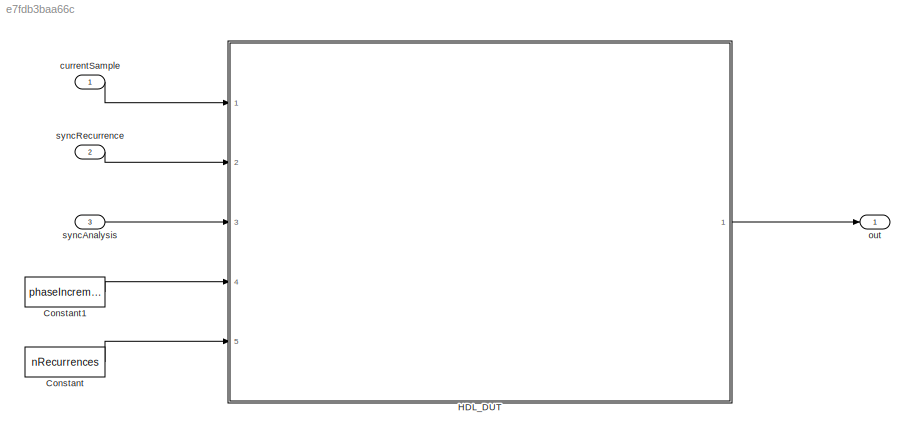
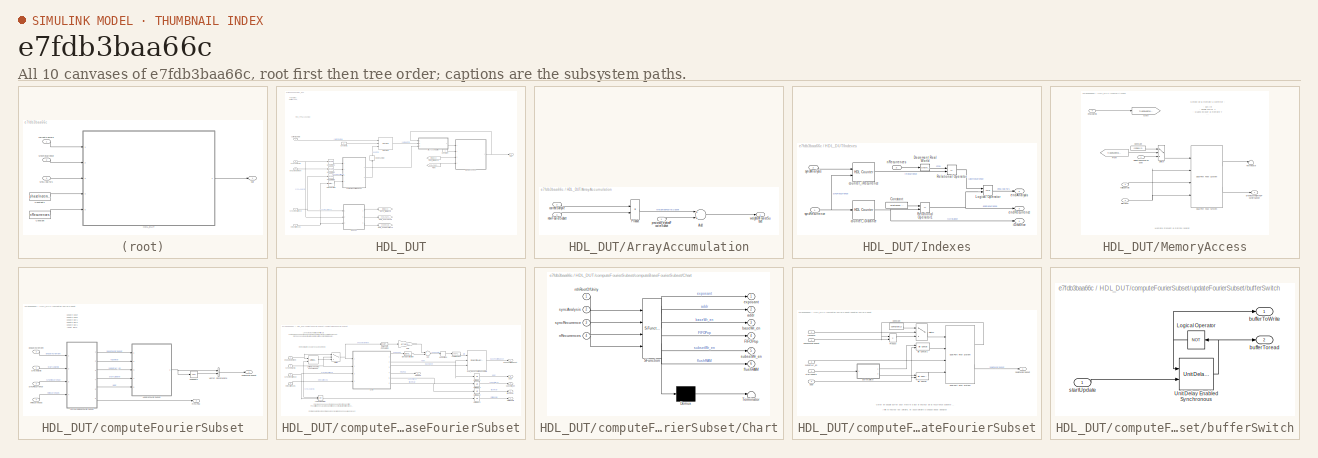
[diagram: thumbnail index - all 10 canvases of the model, root first then tree order]
MODEL slx_e7fdb3baa66c
KIND model
CONFIG AbsTol = auto
CONFIG EnableMultiTasking = off
CONFIG FixedStep = auto
CONFIG MaxStep = auto
CONFIG MinStep = auto
CONFIG PreLoadFcn = DFT_init
CONFIG RelTol = 1e-3
CONFIG SampleTimeConstraint = Unconstrained
CONFIG Solver = FixedStepDiscrete
CONFIG SolverName = FixedStepDiscrete
CONFIG StartTime = 0.0
CONFIG StopTime = simulationTime
BLOCK [Constant] Constant
  OutDataTypeStr = fixdt(0,10,0)
  SampleTime = sampleTime
  Value = nRecurrences
BLOCK [Constant] Constant1
  OutDataTypeStr = DTPhaseIncrement
  SampleTime = sampleTime
  Value = phaseIncrement
BLOCK [SubSystem] HDL_DUT
  Ports = [5, 1]
  RequestExecContextInheritance = off
  Variant = off
BLOCK [SubSystem] HDL_DUT/ArrayAccumulation
  Commented = on
  Ports = [3, 1]
  RequestExecContextInheritance = off
  Variant = off
BLOCK [Sum] HDL_DUT/ArrayAccumulation/Add
  InputSameDT = off
  OutDataTypeStr = Inherit: Inherit via internal rule
  Ports = [2, 1]
  SaturateOnIntegerOverflow = off
BLOCK [Product] HDL_DUT/ArrayAccumulation/Product
  InputSameDT = off
  OutDataTypeStr = Inherit: Inherit via internal rule
  Ports = [2, 1]
  RndMeth = Floor
  SaturateOnIntegerOverflow = off
BLOCK [Inport] HDL_DUT/ArrayAccumulation/currentSample
  IconDisplay = Port number
  Port = 2
BLOCK [Inport] HDL_DUT/ArrayAccumulation/newFourierSubset
  IconDisplay = Port number
  Port = 3
BLOCK [Inport] HDL_DUT/ArrayAccumulation/previousWeightedFourierSubset
  IconDisplay = Port number
BLOCK [Outport] HDL_DUT/ArrayAccumulation/weightedFourierSubset
  IconDisplay = Port number
BLOCK [Constant] HDL_DUT/Constant
  OutDataTypeStr = boolean
  SampleTime = -1
BLOCK [Constant] HDL_DUT/Constant1
  OutDataTypeStr = boolean
  SampleTime = -1
BLOCK [DownSample] HDL_DUT/Downsample
  InputProcessing = Elements as channels (sample based)
  N = oversamplingFactor
  RateOptions = Allow multirate processing
BLOCK [From] HDL_DUT/From
  GotoTag = endAnalysis
BLOCK [From] HDL_DUT/From_iDistance
  GotoTag = iDistance
BLOCK [Goto] HDL_DUT/GoTo_iDistance
  GotoTag = iDistance
BLOCK [Goto] HDL_DUT/Goto_endAnalysis
  GotoTag = endAnalysis
BLOCK [Goto] HDL_DUT/Goto_endRecurrence
  Commented = on
  GotoTag = endRecurrence
BLOCK [Reference] HDL_DUT/HDL FIFO  REF=hdlsllib/HDL RAMs/HDL FIFO
  Ports = [3, 1]
  SourceBlock = hdlsllib/HDL RAMs/HDL FIFO
  SourceProductBaseCode = HD
  SourceProductName = HDL Coder
  SourceType = HDL_FIFO
BLOCK [SubSystem] HDL_DUT/Indexes
  Ports = [3, 3]
  RequestExecContextInheritance = off
  Variant = off
BLOCK [Constant] HDL_DUT/Indexes/Constant
  SampleTime = -1
  Value = nDistances - 1
BLOCK [Reference] HDL_DUT/Indexes/Decrement Real World  REF=simulink/Additional Math
& Discrete/Additional Math:
Increment - Decrement/Decrement
Real World
  Ports = [1, 1]
  SourceBlock = simulink/Additional Math\n& Discrete/Additional Math:\nIncrement - Decrement/Decrement\nReal World
  SourceProductBaseCode = SL
  SourceProductName = Simulink
  SourceType = Real World Value Decrement
BLOCK [Logic] HDL_DUT/Indexes/Logical Operator
  AllPortsSameDT = off
  OutDataTypeStr = boolean
  Ports = [2, 1]
BLOCK [RelationalOperator] HDL_DUT/Indexes/Relational Operator
  InputSameDT = off
  Operator = ==
  OutDataTypeStr = boolean
  Ports = [2, 1]
BLOCK [RelationalOperator] HDL_DUT/Indexes/Relational Operator1
  InputSameDT = off
  Operator = ==
  OutDataTypeStr = boolean
  Ports = [2, 1]
BLOCK [Reference] HDL_DUT/Indexes/counter_iDistance  REF=hdlsllib/Sources/HDL Counter
  Ports = [1, 1]
  SourceBlock = hdlsllib/Sources/HDL Counter
  SourceProductBaseCode = HD
  SourceProductName = HDL Coder
  SourceType = HDL Counter
BLOCK [Reference] HDL_DUT/Indexes/counter_iRecurrence  REF=hdlsllib/Sources/HDL Counter
  Ports = [2, 1]
  SourceBlock = hdlsllib/Sources/HDL Counter
  SourceProductBaseCode = HD
  SourceProductName = HDL Coder
  SourceType = HDL Counter
BLOCK [Outport] HDL_DUT/Indexes/endAnalysis
  IconDisplay = Port number
  Port = 2
BLOCK [Outport] HDL_DUT/Indexes/endRecurrence
  IconDisplay = Port number
  Port = 3
BLOCK [Outport] HDL_DUT/Indexes/iDistance
  IconDisplay = Port number
BLOCK [Inport] HDL_DUT/Indexes/nRecurrences
  IconDisplay = Port number
  Port = 3
BLOCK [Inport] HDL_DUT/Indexes/syncAnalysis
  IconDisplay = Port number
  Port = 2
BLOCK [Inport] HDL_DUT/Indexes/syncRecurrence
  IconDisplay = Port number
BLOCK [SubSystem] HDL_DUT/MemoryAccess
  Commented = on
  Ports = [4, 1]
  RequestExecContextInheritance = off
  Variant = off
BLOCK [Constant] HDL_DUT/MemoryAccess/Constant
  SampleTime = -1
  Value = complex(0)
BLOCK [Reference] HDL_DUT/MemoryAccess/Dual Port RAM System  REF=hdlsllib/HDL RAMs/Dual Port RAM System
  Ports = [4, 2]
  SourceBlock = hdlsllib/HDL RAMs/Dual Port RAM System
  SourceProductBaseCode = HD
  SourceProductName = HDL Coder
  SourceType = hdl.RAM
BLOCK [From] HDL_DUT/MemoryAccess/From
  GotoTag = flushMemory
BLOCK [Goto] HDL_DUT/MemoryAccess/Goto
  GotoTag = flushMemory
BLOCK [Switch] HDL_DUT/MemoryAccess/Switch
  Criteria = u2 ~= 0
  InputSameDT = off
  SaturateOnIntegerOverflow = off
BLOCK [Terminator] HDL_DUT/MemoryAccess/Terminator
BLOCK [Inport] HDL_DUT/MemoryAccess/endAnalysis
  IconDisplay = Port number
  Port = 4
BLOCK [Inport] HDL_DUT/MemoryAccess/iDistance
  IconDisplay = Port number
  Port = 3
BLOCK [Outport] HDL_DUT/MemoryAccess/previousWeightedFourierSubset
  IconDisplay = Port number
BLOCK [Inport] HDL_DUT/MemoryAccess/validSample
  IconDisplay = Port number
  Port = 2
BLOCK [Inport] HDL_DUT/MemoryAccess/weightedFourierSubset
  IconDisplay = Port number
BLOCK [RateTransition] HDL_DUT/Rate Transition
  OutPortSampleTimeOpt = Inherit
BLOCK [Reference] HDL_DUT/Upsample1  REF=dspsigops/Upsample
  Ports = [1, 1]
  SourceBlock = dspsigops/Upsample
  SourceProductBaseCode = DS
  SourceProductName = DSP System Toolbox
  SourceType = Upsample
  UserDataPersistent = on
BLOCK [Reference] HDL_DUT/Upsample2  REF=dspsigops/Upsample
  Ports = [1, 1]
  SourceBlock = dspsigops/Upsample
  SourceProductBaseCode = DS
  SourceProductName = DSP System Toolbox
  SourceType = Upsample
  UserDataPersistent = on
BLOCK [Reference] HDL_DUT/Upsample3  REF=dspsigops/Upsample
  Ports = [1, 1]
  SourceBlock = dspsigops/Upsample
  SourceProductBaseCode = DS
  SourceProductName = DSP System Toolbox
  SourceType = Upsample
  UserDataPersistent = on
BLOCK [SubSystem] HDL_DUT/computeFourierSubset
  Ports = [4, 2]
  RequestExecContextInheritance = off
  Variant = off
BLOCK [Math] HDL_DUT/computeFourierSubset/Conjugate
  Operator = conj
  Ports = [1, 1]
  RndMeth = Zero
BLOCK [Outport] HDL_DUT/computeFourierSubset/FIFOPop
  IconDisplay = Port number
  Port = 2
BLOCK [Concatenate] HDL_DUT/computeFourierSubset/Vector Concatenate
  Ports = [2, 1]
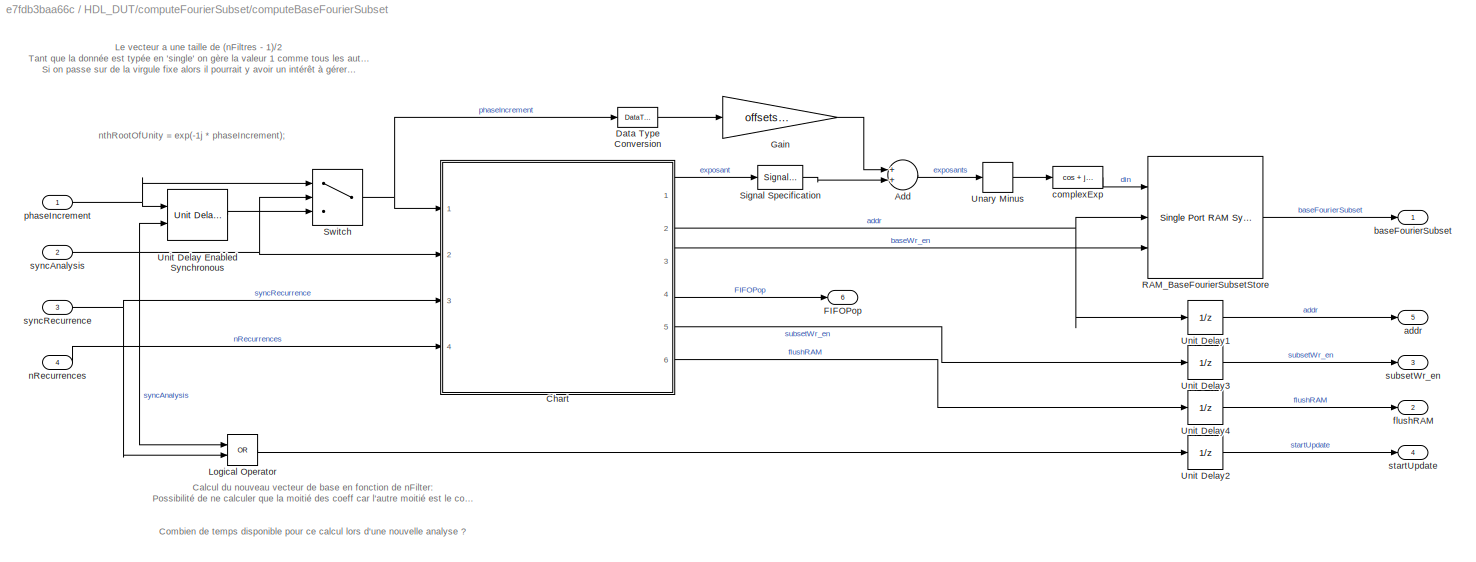
BLOCK [SubSystem] HDL_DUT/computeFourierSubset/computeBaseFourierSubset
  Ports = [4, 6]
  RequestExecContextInheritance = off
  Variant = off
BLOCK [Sum] HDL_DUT/computeFourierSubset/computeBaseFourierSubset/Add
  InputSameDT = off
  OutDataTypeStr = Inherit: Inherit via internal rule
  Ports = [2, 1]
  SaturateOnIntegerOverflow = off
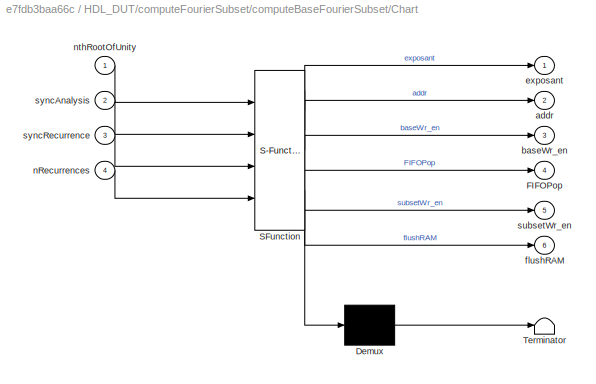
BLOCK [SubSystem] HDL_DUT/computeFourierSubset/computeBaseFourierSubset/Chart
  ErrorFcn = Stateflow.Translate.translate
  PermitHierarchicalResolution = ExplicitOnly
  Ports = [4, 6]
  RequestExecContextInheritance = off
  SFBlockType = Chart
  TreatAsAtomicUnit = on
  Variant = off
BLOCK [Demux] HDL_DUT/computeFourierSubset/computeBaseFourierSubset/Chart/ Demux 
  Outputs = 1
  Ports = [1, 1]
BLOCK [S-Function] HDL_DUT/computeFourierSubset/computeBaseFourierSubset/Chart/ SFunction 
  EnableBusSupport = on
  FunctionName = sf_sfun
  Parameters = sizeRAMs
  PortCounts = [4 7]
  Ports = [4, 7]
  SFcnIsStateOwnerBlock = off
  SFunctionDeploymentMode = off
  Tag = Stateflow S-Function DFT 2
BLOCK [Terminator] HDL_DUT/computeFourierSubset/computeBaseFourierSubset/Chart/ Terminator 
BLOCK [Outport] HDL_DUT/computeFourierSubset/computeBaseFourierSubset/Chart/FIFOPop
  IconDisplay = Port number
  Port = 4
BLOCK [Outport] HDL_DUT/computeFourierSubset/computeBaseFourierSubset/Chart/addr
  IconDisplay = Port number
  Port = 2
BLOCK [Outport] HDL_DUT/computeFourierSubset/computeBaseFourierSubset/Chart/baseWr_en
  IconDisplay = Port number
  Port = 3
BLOCK [Outport] HDL_DUT/computeFourierSubset/computeBaseFourierSubset/Chart/exposant
  IconDisplay = Port number
BLOCK [Outport] HDL_DUT/computeFourierSubset/computeBaseFourierSubset/Chart/flushRAM
  IconDisplay = Port number
  Port = 6
BLOCK [Inport] HDL_DUT/computeFourierSubset/computeBaseFourierSubset/Chart/nRecurrences
  IconDisplay = Port number
  Port = 4
BLOCK [Inport] HDL_DUT/computeFourierSubset/computeBaseFourierSubset/Chart/nthRootOfUnity
  IconDisplay = Port number
BLOCK [Outport] HDL_DUT/computeFourierSubset/computeBaseFourierSubset/Chart/subsetWr_en
  IconDisplay = Port number
  Port = 5
BLOCK [Inport] HDL_DUT/computeFourierSubset/computeBaseFourierSubset/Chart/syncAnalysis
  IconDisplay = Port number
  Port = 2
BLOCK [Inport] HDL_DUT/computeFourierSubset/computeBaseFourierSubset/Chart/syncRecurrence
  IconDisplay = Port number
  Port = 3
BLOCK [DataTypeConversion] HDL_DUT/computeFourierSubset/computeBaseFourierSubset/Data Type Conversion
  OutDataTypeStr = single
  RndMeth = Nearest
  SaturateOnIntegerOverflow = off
BLOCK [Outport] HDL_DUT/computeFourierSubset/computeBaseFourierSubset/FIFOPop
  IconDisplay = Port number
  Port = 6
BLOCK [Gain] HDL_DUT/computeFourierSubset/computeBaseFourierSubset/Gain
  Gain = offsetsExposant
  OutDataTypeStr = Inherit: Inherit via internal rule
  ParamDataTypeStr = Inherit: Inherit via internal rule
  SaturateOnIntegerOverflow = off
BLOCK [Logic] HDL_DUT/computeFourierSubset/computeBaseFourierSubset/Logical Operator
  AllPortsSameDT = off
  Operator = OR
  OutDataTypeStr = boolean
  Ports = [2, 1]
BLOCK [Reference] HDL_DUT/computeFourierSubset/computeBaseFourierSubset/RAM_BaseFourierSubsetStore  REF=hdlsllib/HDL RAMs/Single Port RAM System
  Ports = [3, 1]
  SourceBlock = hdlsllib/HDL RAMs/Single Port RAM System
  SourceProductBaseCode = HD
  SourceProductName = HDL Coder
  SourceType = hdl.RAM
BLOCK [SignalSpecification] HDL_DUT/computeFourierSubset/computeBaseFourierSubset/Signal Specification
  OutDataTypeStr = single
BLOCK [Switch] HDL_DUT/computeFourierSubset/computeBaseFourierSubset/Switch
  Criteria = u2 ~= 0
  InputSameDT = off
  SaturateOnIntegerOverflow = off
BLOCK [UnaryMinus] HDL_DUT/computeFourierSubset/computeBaseFourierSubset/Unary Minus
BLOCK [Reference] HDL_DUT/computeFourierSubset/computeBaseFourierSubset/Unit Delay Enabled Synchronous  REF=hdlsllib/Discrete/Unit Delay Enabled
Synchronous
  Ports = [2, 1]
  SourceBlock = hdlsllib/Discrete/Unit Delay Enabled\nSynchronous
  SourceProductBaseCode = HD
  SourceProductName = HDL Coder
  SourceType = Unit Delay Enabled Synchronous
BLOCK [UnitDelay] HDL_DUT/computeFourierSubset/computeBaseFourierSubset/Unit Delay1
  InputProcessing = Elements as channels (sample based)
  SampleTime = -1
BLOCK [UnitDelay] HDL_DUT/computeFourierSubset/computeBaseFourierSubset/Unit Delay2
  InputProcessing = Elements as channels (sample based)
  SampleTime = -1
BLOCK [UnitDelay] HDL_DUT/computeFourierSubset/computeBaseFourierSubset/Unit Delay3
  InputProcessing = Elements as channels (sample based)
  SampleTime = -1
BLOCK [UnitDelay] HDL_DUT/computeFourierSubset/computeBaseFourierSubset/Unit Delay4
  InputProcessing = Elements as channels (sample based)
  SampleTime = -1
BLOCK [Outport] HDL_DUT/computeFourierSubset/computeBaseFourierSubset/addr
  IconDisplay = Port number
  Port = 5
BLOCK [Outport] HDL_DUT/computeFourierSubset/computeBaseFourierSubset/baseFourierSubset
  IconDisplay = Port number
BLOCK [Trigonometry] HDL_DUT/computeFourierSubset/computeBaseFourierSubset/complexExp
  Operator = cos + jsin
  Ports = [1, 1]
BLOCK [Outport] HDL_DUT/computeFourierSubset/computeBaseFourierSubset/flushRAM
  IconDisplay = Port number
  Port = 2
BLOCK [Inport] HDL_DUT/computeFourierSubset/computeBaseFourierSubset/nRecurrences
  IconDisplay = Port number
  Port = 4
BLOCK [Inport] HDL_DUT/computeFourierSubset/computeBaseFourierSubset/phaseIncrement
  IconDisplay = Port number
BLOCK [Outport] HDL_DUT/computeFourierSubset/computeBaseFourierSubset/startUpdate
  IconDisplay = Port number
  Port = 4
BLOCK [Outport] HDL_DUT/computeFourierSubset/computeBaseFourierSubset/subsetWr_en
  IconDisplay = Port number
  Port = 3
BLOCK [Inport] HDL_DUT/computeFourierSubset/computeBaseFourierSubset/syncAnalysis
  IconDisplay = Port number
  Port = 2
BLOCK [Inport] HDL_DUT/computeFourierSubset/computeBaseFourierSubset/syncRecurrence
  IconDisplay = Port number
  Port = 3
BLOCK [Inport] HDL_DUT/computeFourierSubset/nRecurrences
  IconDisplay = Port number
  Port = 4
BLOCK [Outport] HDL_DUT/computeFourierSubset/newFourierSubset
  IconDisplay = Port number
BLOCK [Inport] HDL_DUT/computeFourierSubset/phaseIncrement
  IconDisplay = Port number
  Port = 2
BLOCK [Inport] HDL_DUT/computeFourierSubset/syncAnalysis
  IconDisplay = Port number
BLOCK [Inport] HDL_DUT/computeFourierSubset/syncRecurrence
  IconDisplay = Port number
  Port = 3
BLOCK [SubSystem] HDL_DUT/computeFourierSubset/updateFourierSubset
  Ports = [5, 1]
  RequestExecContextInheritance = off
  Variant = off
BLOCK [Reference] HDL_DUT/computeFourierSubset/updateFourierSubset/Bit Concat  REF=hdlsllib/Logic and Bit
Operations/Bit Concat
  Ports = [2, 1]
  SourceBlock = hdlsllib/Logic and Bit\nOperations/Bit Concat
  SourceProductBaseCode = HD
  SourceProductName = HDL Coder
  SourceType = Bit Concat
BLOCK [Reference] HDL_DUT/computeFourierSubset/updateFourierSubset/Bit Concat1  REF=hdlsllib/Logic and Bit
Operations/Bit Concat
  Ports = [2, 1]
  SourceBlock = hdlsllib/Logic and Bit\nOperations/Bit Concat
  SourceProductBaseCode = HD
  SourceProductName = HDL Coder
  SourceType = Bit Concat
BLOCK [Constant] HDL_DUT/computeFourierSubset/updateFourierSubset/Constant
  OutDataTypeStr = single
  SampleTime = -1
  Value = complex(1)
BLOCK [Reference] HDL_DUT/computeFourierSubset/updateFourierSubset/Dual Port RAM System  REF=hdlsllib/HDL RAMs/Dual Port RAM System
  Ports = [4, 2]
  SourceBlock = hdlsllib/HDL RAMs/Dual Port RAM System
  SourceProductBaseCode = HD
  SourceProductName = HDL Coder
  SourceType = hdl.RAM
BLOCK [Product] HDL_DUT/computeFourierSubset/updateFourierSubset/Product
  InputSameDT = off
  OutDataTypeStr = single
  Ports = [2, 1]
  RndMeth = Floor
  SaturateOnIntegerOverflow = off
BLOCK [Switch] HDL_DUT/computeFourierSubset/updateFourierSubset/Switch
  Criteria = u2 ~= 0
  InputSameDT = off
  SaturateOnIntegerOverflow = off
BLOCK [Inport] HDL_DUT/computeFourierSubset/updateFourierSubset/addr
  IconDisplay = Port number
  Port = 5
BLOCK [Inport] HDL_DUT/computeFourierSubset/updateFourierSubset/baseFourierSubset
  IconDisplay = Port number
BLOCK [SubSystem] HDL_DUT/computeFourierSubset/updateFourierSubset/bufferSwitch
  Ports = [1, 2]
  RequestExecContextInheritance = off
  Variant = off
BLOCK [Logic] HDL_DUT/computeFourierSubset/updateFourierSubset/bufferSwitch/Logical Operator
  AllPortsSameDT = off
  Operator = NOT
  OutDataTypeStr = boolean
  Ports = [1, 1]
BLOCK [Reference] HDL_DUT/computeFourierSubset/updateFourierSubset/bufferSwitch/Unit Delay Enabled Synchronous  REF=hdlsllib/Discrete/Unit Delay Enabled
Synchronous
  Ports = [2, 1]
  SourceBlock = hdlsllib/Discrete/Unit Delay Enabled\nSynchronous
  SourceProductBaseCode = HD
  SourceProductName = HDL Coder
  SourceType = Unit Delay Enabled Synchronous
BLOCK [Outport] HDL_DUT/computeFourierSubset/updateFourierSubset/bufferSwitch/bufferToWrite 
  IconDisplay = Port number
BLOCK [Outport] HDL_DUT/computeFourierSubset/updateFourierSubset/bufferSwitch/bufferToread
  IconDisplay = Port number
  Port = 2
BLOCK [Inport] HDL_DUT/computeFourierSubset/updateFourierSubset/bufferSwitch/startUpdate
  IconDisplay = Port number
BLOCK [Inport] HDL_DUT/computeFourierSubset/updateFourierSubset/flushRAM
  IconDisplay = Port number
  Port = 2
BLOCK [Outport] HDL_DUT/computeFourierSubset/updateFourierSubset/newFourierSubset
  IconDisplay = Port number
BLOCK [Inport] HDL_DUT/computeFourierSubset/updateFourierSubset/startUpdate
  IconDisplay = Port number
  Port = 4
BLOCK [Inport] HDL_DUT/computeFourierSubset/updateFourierSubset/subsetWr_en
  IconDisplay = Port number
  Port = 3
BLOCK [Inport] HDL_DUT/currentSample
  IconDisplay = Port number
  OutDataTypeStr = DTsample
  SampleTime = sampleTime
  SignalType = complex
BLOCK [Inport] HDL_DUT/nRecurrences
  IconDisplay = Port number
  OutDataTypeStr = fixdt(0,10,0)
  Port = 5
BLOCK [Outport] HDL_DUT/out
  IconDisplay = Port number
BLOCK [Inport] HDL_DUT/phaseIncrement
  IconDisplay = Port number
  OutDataTypeStr = DTPhaseIncrement
  Port = 4
BLOCK [Inport] HDL_DUT/syncAnalysis
  IconDisplay = Port number
  OutDataTypeStr = boolean
  Port = 3
BLOCK [Inport] HDL_DUT/syncRecurrence 
  IconDisplay = Port number
  OutDataTypeStr = boolean
  Port = 2
BLOCK [Inport] currentSample
  IconDisplay = Port number
  Interpolate = off
  OutDataTypeStr = DTsample
  SampleTime = sampleTime
  SignalType = complex
BLOCK [Outport] out
  IconDisplay = Port number
BLOCK [Inport] syncAnalysis
  IconDisplay = Port number
  Interpolate = off
  OutDataTypeStr = boolean
  Port = 3
  SampleTime = sampleTime
BLOCK [Inport] syncRecurrence 
  IconDisplay = Port number
  Interpolate = off
  OutDataTypeStr = boolean
  Port = 2
  SampleTime = sampleTime
ANNOTATION HDL_DUT: Freq_FPGA = 250MHz
ANNOTATION HDL_DUT: Parametres: - nFilters = 200;
ANNOTATION HDL_DUT/MemoryAccess: Gestion de la mémoire à confirmer : - Ext/Int - Double buffer ? - Quand ecraser la mémoire ? ...
ANNOTATION HDL_DUT/MemoryAccess: Mémoire stockant la matrice résultat
ANNOTATION HDL_DUT/computeFourierSubset: update base update base update Buf1 update Buf0 update Buf1 reset Buf0 update Buf1 read Buf0 read Buf1 read Buf0 read Buf1 read Buf0
ANNOTATION HDL_DUT/computeFourierSubset/computeBaseFourierSubset: Calcul du nouveau vecteur de base en fonction de nFilter: Possibilité de ne calculer que la moitié des coeff car l'autre moitié est le conjugué -> divise le temps par 2 Combien de temps disponible pour ce calcul lors d'une nouvelle analyse ?
ANNOTATION HDL_DUT/computeFourierSubset/computeBaseFourierSubset: Le vecteur a une taille de (nFiltres - 1)/2 Tant que la donnée est typée en 'single' on gère la valeur 1 comme tous les autres coefficients. Si on passe sur de la virgule fixe alors il pourrait y avoir un intérêt à gérer la valeur 1 à part.
ANNOTATION HDL_DUT/computeFourierSubset/computeBaseFourierSubset: nthRootOfUnity = exp(-1j * phaseIncrement);
ANNOTATION HDL_DUT/computeFourierSubset/updateFourierSubset: Gérer en double buffer pour mettre à jour le vecteur de la récurrence suivante pendant la récurrence courante A l'init le vecteur est unitaire, et aussi unitaire à chaque début d'analyse
LINE Constant1:1 -> HDL_DUT:4
LINE Constant:1 -> HDL_DUT:5
LINE HDL_DUT/ArrayAccumulation/Add:1 -> HDL_DUT/ArrayAccumulation/weightedFourierSubset:1
LINE HDL_DUT/ArrayAccumulation/Product:1 -> HDL_DUT/ArrayAccumulation/Add:1
LINE HDL_DUT/ArrayAccumulation/currentSample:1 -> HDL_DUT/ArrayAccumulation/Product:1
LINE HDL_DUT/ArrayAccumulation/newFourierSubset:1 -> HDL_DUT/ArrayAccumulation/Product:2
LINE HDL_DUT/ArrayAccumulation/previousWeightedFourierSubset:1 -> HDL_DUT/ArrayAccumulation/Add:2
LINE HDL_DUT/ArrayAccumulation:1 -> HDL_DUT/MemoryAccess:1
LINE HDL_DUT/Constant1:1 -> HDL_DUT/HDL FIFO:2
LINE HDL_DUT/Constant:1 -> HDL_DUT/MemoryAccess:2
LINE HDL_DUT/Downsample:1 -> HDL_DUT/HDL FIFO:3
LINE HDL_DUT/From:1 -> HDL_DUT/MemoryAccess:4
LINE HDL_DUT/From_iDistance:1 -> HDL_DUT/MemoryAccess:3
LINE HDL_DUT/HDL FIFO:1 -> HDL_DUT/ArrayAccumulation:2
LINE HDL_DUT/Indexes/Constant:1 -> HDL_DUT/Indexes/Relational Operator1:1
LINE HDL_DUT/Indexes/Decrement Real World:1 -> HDL_DUT/Indexes/Relational Operator:1
LINE HDL_DUT/Indexes/Logical Operator:1 -> HDL_DUT/Indexes/endAnalysis:1
NET HDL_DUT/Indexes/Relational Operator1:1 -> HDL_DUT/Indexes/Logical Operator:2, HDL_DUT/Indexes/endRecurrence:1
LINE HDL_DUT/Indexes/Relational Operator:1 -> HDL_DUT/Indexes/Logical Operator:1
NET HDL_DUT/Indexes/counter_iDistance:1 -> HDL_DUT/Indexes/Relational Operator1:2, HDL_DUT/Indexes/iDistance:1
LINE HDL_DUT/Indexes/counter_iRecurrence:1 -> HDL_DUT/Indexes/Relational Operator:2
LINE HDL_DUT/Indexes/nRecurrences:1 -> HDL_DUT/Indexes/Decrement Real World:1
LINE HDL_DUT/Indexes/syncAnalysis:1 -> HDL_DUT/Indexes/counter_iRecurrence:1
NET HDL_DUT/Indexes/syncRecurrence:1 -> HDL_DUT/Indexes/counter_iDistance:1, HDL_DUT/Indexes/counter_iRecurrence:2
LINE HDL_DUT/Indexes:1 -> HDL_DUT/GoTo_iDistance:1
LINE HDL_DUT/Indexes:2 -> HDL_DUT/Goto_endAnalysis:1
LINE HDL_DUT/Indexes:3 -> HDL_DUT/Goto_endRecurrence:1
LINE HDL_DUT/MemoryAccess/Constant:1 -> HDL_DUT/MemoryAccess/Switch:1
LINE HDL_DUT/MemoryAccess/Dual Port RAM System:1 -> HDL_DUT/MemoryAccess/Terminator:1
LINE HDL_DUT/MemoryAccess/Dual Port RAM System:2 -> HDL_DUT/MemoryAccess/previousWeightedFourierSubset:1
LINE HDL_DUT/MemoryAccess/From:1 -> HDL_DUT/MemoryAccess/Switch:2
LINE HDL_DUT/MemoryAccess/Switch:1 -> HDL_DUT/MemoryAccess/Dual Port RAM System:1
LINE HDL_DUT/MemoryAccess/endAnalysis:1 -> HDL_DUT/MemoryAccess/Goto:1
NET HDL_DUT/MemoryAccess/iDistance:1 -> HDL_DUT/MemoryAccess/Dual Port RAM System:2, HDL_DUT/MemoryAccess/Dual Port RAM System:4
LINE HDL_DUT/MemoryAccess/validSample:1 -> HDL_DUT/MemoryAccess/Dual Port RAM System:3
LINE HDL_DUT/MemoryAccess/weightedFourierSubset:1 -> HDL_DUT/MemoryAccess/Switch:3
NET HDL_DUT/MemoryAccess:1 -> HDL_DUT/ArrayAccumulation:1, HDL_DUT/out:1
LINE HDL_DUT/Rate Transition:1 -> HDL_DUT/computeFourierSubset:4
LINE HDL_DUT/Upsample1:1 -> HDL_DUT/computeFourierSubset:1
LINE HDL_DUT/Upsample2:1 -> HDL_DUT/computeFourierSubset:3
LINE HDL_DUT/Upsample3:1 -> HDL_DUT/computeFourierSubset:2
LINE HDL_DUT/computeFourierSubset/Conjugate:1 -> HDL_DUT/computeFourierSubset/Vector Concatenate:2
LINE HDL_DUT/computeFourierSubset/Vector Concatenate:1 -> HDL_DUT/computeFourierSubset/newFourierSubset:1
LINE HDL_DUT/computeFourierSubset/computeBaseFourierSubset/Add:1 -> HDL_DUT/computeFourierSubset/computeBaseFourierSubset/Unary Minus:1
LINE HDL_DUT/computeFourierSubset/computeBaseFourierSubset/Chart:1 -> HDL_DUT/computeFourierSubset/computeBaseFourierSubset/Signal Specification:1
NET HDL_DUT/computeFourierSubset/computeBaseFourierSubset/Chart:2 -> HDL_DUT/computeFourierSubset/computeBaseFourierSubset/RAM_BaseFourierSubsetStore:2, HDL_DUT/computeFourierSubset/computeBaseFourierSubset/Unit Delay1:1
LINE HDL_DUT/computeFourierSubset/computeBaseFourierSubset/Chart:3 -> HDL_DUT/computeFourierSubset/computeBaseFourierSubset/RAM_BaseFourierSubsetStore:3
LINE HDL_DUT/computeFourierSubset/computeBaseFourierSubset/Chart:4 -> HDL_DUT/computeFourierSubset/computeBaseFourierSubset/FIFOPop:1
LINE HDL_DUT/computeFourierSubset/computeBaseFourierSubset/Chart:5 -> HDL_DUT/computeFourierSubset/computeBaseFourierSubset/Unit Delay3:1
LINE HDL_DUT/computeFourierSubset/computeBaseFourierSubset/Chart:6 -> HDL_DUT/computeFourierSubset/computeBaseFourierSubset/Unit Delay4:1
LINE HDL_DUT/computeFourierSubset/computeBaseFourierSubset/Data Type Conversion:1 -> HDL_DUT/computeFourierSubset/computeBaseFourierSubset/Gain:1
LINE HDL_DUT/computeFourierSubset/computeBaseFourierSubset/Gain:1 -> HDL_DUT/computeFourierSubset/computeBaseFourierSubset/Add:1
LINE HDL_DUT/computeFourierSubset/computeBaseFourierSubset/Logical Operator:1 -> HDL_DUT/computeFourierSubset/computeBaseFourierSubset/Unit Delay2:1
LINE HDL_DUT/computeFourierSubset/computeBaseFourierSubset/RAM_BaseFourierSubsetStore:1 -> HDL_DUT/computeFourierSubset/computeBaseFourierSubset/baseFourierSubset:1
LINE HDL_DUT/computeFourierSubset/computeBaseFourierSubset/Signal Specification:1 -> HDL_DUT/computeFourierSubset/computeBaseFourierSubset/Add:2
NET HDL_DUT/computeFourierSubset/computeBaseFourierSubset/Switch:1 -> HDL_DUT/computeFourierSubset/computeBaseFourierSubset/Chart:1, HDL_DUT/computeFourierSubset/computeBaseFourierSubset/Data Type Conversion:1
LINE HDL_DUT/computeFourierSubset/computeBaseFourierSubset/Unary Minus:1 -> HDL_DUT/computeFourierSubset/computeBaseFourierSubset/complexExp:1
LINE HDL_DUT/computeFourierSubset/computeBaseFourierSubset/Unit Delay Enabled Synchronous:1 -> HDL_DUT/computeFourierSubset/computeBaseFourierSubset/Switch:3
LINE HDL_DUT/computeFourierSubset/computeBaseFourierSubset/Unit Delay1:1 -> HDL_DUT/computeFourierSubset/computeBaseFourierSubset/addr:1
LINE HDL_DUT/computeFourierSubset/computeBaseFourierSubset/Unit Delay2:1 -> HDL_DUT/computeFourierSubset/computeBaseFourierSubset/startUpdate:1
LINE HDL_DUT/computeFourierSubset/computeBaseFourierSubset/Unit Delay3:1 -> HDL_DUT/computeFourierSubset/computeBaseFourierSubset/subsetWr_en:1
LINE HDL_DUT/computeFourierSubset/computeBaseFourierSubset/Unit Delay4:1 -> HDL_DUT/computeFourierSubset/computeBaseFourierSubset/flushRAM:1
LINE HDL_DUT/computeFourierSubset/computeBaseFourierSubset/complexExp:1 -> HDL_DUT/computeFourierSubset/computeBaseFourierSubset/RAM_BaseFourierSubsetStore:1
LINE HDL_DUT/computeFourierSubset/computeBaseFourierSubset/nRecurrences:1 -> HDL_DUT/computeFourierSubset/computeBaseFourierSubset/Chart:4
NET HDL_DUT/computeFourierSubset/computeBaseFourierSubset/phaseIncrement:1 -> HDL_DUT/computeFourierSubset/computeBaseFourierSubset/Switch:1, HDL_DUT/computeFourierSubset/computeBaseFourierSubset/Unit Delay Enabled Synchronous:1
NET HDL_DUT/computeFourierSubset/computeBaseFourierSubset/syncAnalysis:1 -> HDL_DUT/computeFourierSubset/computeBaseFourierSubset/Chart:2, HDL_DUT/computeFourierSubset/computeBaseFourierSubset/Logical Operator:1, HDL_DUT/computeFourierSubset/computeBaseFourierSubset/Switch:2, HDL_DUT/computeFourierSubset/computeBaseFourierSubset/Unit Delay Enabled Synchronous:2
NET HDL_DUT/computeFourierSubset/computeBaseFourierSubset/syncRecurrence:1 -> HDL_DUT/computeFourierSubset/computeBaseFourierSubset/Chart:3, HDL_DUT/computeFourierSubset/computeBaseFourierSubset/Logical Operator:2
LINE HDL_DUT/computeFourierSubset/computeBaseFourierSubset:1 -> HDL_DUT/computeFourierSubset/updateFourierSubset:1
LINE HDL_DUT/computeFourierSubset/computeBaseFourierSubset:2 -> HDL_DUT/computeFourierSubset/updateFourierSubset:2
LINE HDL_DUT/computeFourierSubset/computeBaseFourierSubset:3 -> HDL_DUT/computeFourierSubset/updateFourierSubset:3
LINE HDL_DUT/computeFourierSubset/computeBaseFourierSubset:4 -> HDL_DUT/computeFourierSubset/updateFourierSubset:4
LINE HDL_DUT/computeFourierSubset/computeBaseFourierSubset:5 -> HDL_DUT/computeFourierSubset/updateFourierSubset:5
LINE HDL_DUT/computeFourierSubset/computeBaseFourierSubset:6 -> HDL_DUT/computeFourierSubset/FIFOPop:1
LINE HDL_DUT/computeFourierSubset/nRecurrences:1 -> HDL_DUT/computeFourierSubset/computeBaseFourierSubset:4
LINE HDL_DUT/computeFourierSubset/phaseIncrement:1 -> HDL_DUT/computeFourierSubset/computeBaseFourierSubset:1
LINE HDL_DUT/computeFourierSubset/syncAnalysis:1 -> HDL_DUT/computeFourierSubset/computeBaseFourierSubset:2
LINE HDL_DUT/computeFourierSubset/syncRecurrence:1 -> HDL_DUT/computeFourierSubset/computeBaseFourierSubset:3
LINE HDL_DUT/computeFourierSubset/updateFourierSubset/Bit Concat1:1 -> HDL_DUT/computeFourierSubset/updateFourierSubset/Dual Port RAM System:2
LINE HDL_DUT/computeFourierSubset/updateFourierSubset/Bit Concat:1 -> HDL_DUT/computeFourierSubset/updateFourierSubset/Dual Port RAM System:4
LINE HDL_DUT/computeFourierSubset/updateFourierSubset/Constant:1 -> HDL_DUT/computeFourierSubset/updateFourierSubset/Switch:1
LINE HDL_DUT/computeFourierSubset/updateFourierSubset/Dual Port RAM System:1 -> HDL_DUT/computeFourierSubset/updateFourierSubset/Product:1
LINE HDL_DUT/computeFourierSubset/updateFourierSubset/Dual Port RAM System:2 -> HDL_DUT/computeFourierSubset/updateFourierSubset/newFourierSubset:1
LINE HDL_DUT/computeFourierSubset/updateFourierSubset/Product:1 -> HDL_DUT/computeFourierSubset/updateFourierSubset/Switch:3
LINE HDL_DUT/computeFourierSubset/updateFourierSubset/Switch:1 -> HDL_DUT/computeFourierSubset/updateFourierSubset/Dual Port RAM System:1
NET HDL_DUT/computeFourierSubset/updateFourierSubset/addr:1 -> HDL_DUT/computeFourierSubset/updateFourierSubset/Bit Concat1:2, HDL_DUT/computeFourierSubset/updateFourierSubset/Bit Concat:2
LINE HDL_DUT/computeFourierSubset/updateFourierSubset/baseFourierSubset:1 -> HDL_DUT/computeFourierSubset/updateFourierSubset/Product:2
NET HDL_DUT/computeFourierSubset/updateFourierSubset/bufferSwitch/Logical Operator:1 -> HDL_DUT/computeFourierSubset/updateFourierSubset/bufferSwitch/Unit Delay Enabled Synchronous:1, HDL_DUT/computeFourierSubset/updateFourierSubset/bufferSwitch/bufferToWrite :1
NET HDL_DUT/computeFourierSubset/updateFourierSubset/bufferSwitch/Unit Delay Enabled Synchronous:1 -> HDL_DUT/computeFourierSubset/updateFourierSubset/bufferSwitch/Logical Operator:1, HDL_DUT/computeFourierSubset/updateFourierSubset/bufferSwitch/bufferToread:1
LINE HDL_DUT/computeFourierSubset/updateFourierSubset/bufferSwitch/startUpdate:1 -> HDL_DUT/computeFourierSubset/updateFourierSubset/bufferSwitch/Unit Delay Enabled Synchronous:2
LINE HDL_DUT/computeFourierSubset/updateFourierSubset/bufferSwitch:1 -> HDL_DUT/computeFourierSubset/updateFourierSubset/Bit Concat1:1
LINE HDL_DUT/computeFourierSubset/updateFourierSubset/bufferSwitch:2 -> HDL_DUT/computeFourierSubset/updateFourierSubset/Bit Concat:1
LINE HDL_DUT/computeFourierSubset/updateFourierSubset/flushRAM:1 -> HDL_DUT/computeFourierSubset/updateFourierSubset/Switch:2
LINE HDL_DUT/computeFourierSubset/updateFourierSubset/startUpdate:1 -> HDL_DUT/computeFourierSubset/updateFourierSubset/bufferSwitch:1
LINE HDL_DUT/computeFourierSubset/updateFourierSubset/subsetWr_en:1 -> HDL_DUT/computeFourierSubset/updateFourierSubset/Dual Port RAM System:3
NET HDL_DUT/computeFourierSubset/updateFourierSubset:1 -> HDL_DUT/computeFourierSubset/Conjugate:1, HDL_DUT/computeFourierSubset/Vector Concatenate:1
LINE HDL_DUT/computeFourierSubset:1 -> HDL_DUT/ArrayAccumulation:3
LINE HDL_DUT/computeFourierSubset:2 -> HDL_DUT/Downsample:1
LINE HDL_DUT/currentSample:1 -> HDL_DUT/HDL FIFO:1
NET HDL_DUT/nRecurrences:1 -> HDL_DUT/Indexes:3, HDL_DUT/Rate Transition:1
LINE HDL_DUT/phaseIncrement:1 -> HDL_DUT/Upsample3:1
NET HDL_DUT/syncAnalysis:1 -> HDL_DUT/Indexes:2, HDL_DUT/Upsample1:1
NET HDL_DUT/syncRecurrence :1 -> HDL_DUT/Indexes:1, HDL_DUT/Upsample2:1
LINE HDL_DUT:1 -> out:1
LINE currentSample:1 -> HDL_DUT:1
LINE syncAnalysis:1 -> HDL_DUT:3
LINE syncRecurrence :1 -> HDL_DUT:2
note: NET lines group one-source signal fan-out (src -> all destinations, sorted); 1:1 wires keep LINE
CHART HDL_DUT/computeFourierSubset/computeBaseFourierSubset/Chart states=5 transitions=7
  STATE_LABEL 'reset\nentry:\nbaseWr_en = true;\naddr = uint8(0);\nexposant = 0;\nFIFOPop = false;\nflushRAM = false;\niRecurrence = 0;\n\n'
  STATE_LABEL 'FIRST_RECURRENCE\nentry:\nbaseWr_en = true;\nexposant = 0;\niRecurrence = iRecurrence + 1;\n\nduring:\nsubsetWr_en = true;\naddr = addr+uint8(1);\nexposant = exposant + nthRootOfUnity;\n'
  STATE_LABEL 'INTERMEDIATE_RECURRENCE\nentry:\nsubsetWr_en = true;\niRecurrence = iRecurrence + 1;\n\nduring:\naddr = addr+uint8(1);'
  STATE_LABEL 'IDLE\nentry:\nbaseWr_en = false;\nsubsetWr_en = false;\naddr = uint8(0);\nFIFOPop = true;'
  STATE_LABEL 'LAST_RECURRENCE\nentry:\nbaseWr_en = false;\nflushRAM = true;\niRecurrence = iRecurrence + 1;\n\nduring:\naddr = addr+uint8(1);'
